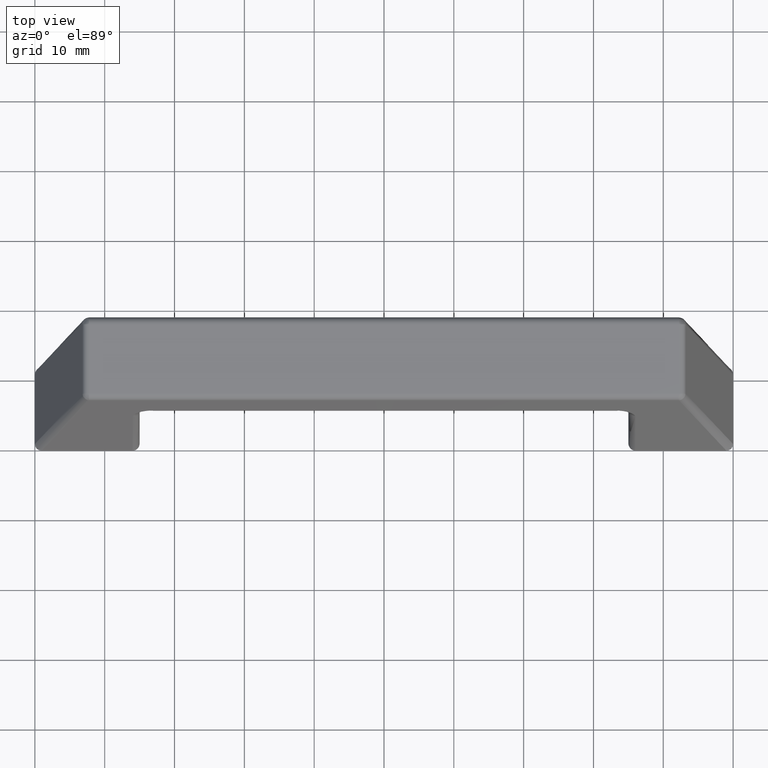
[diagram: clean part render]
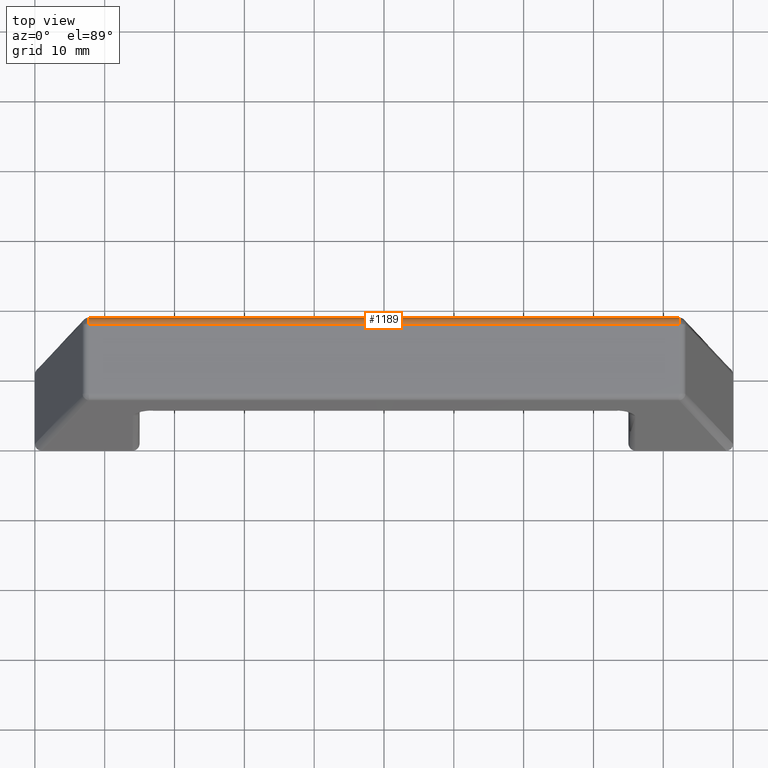
[diagram: same view with one face highlighted and labeled with its STEP entity id]
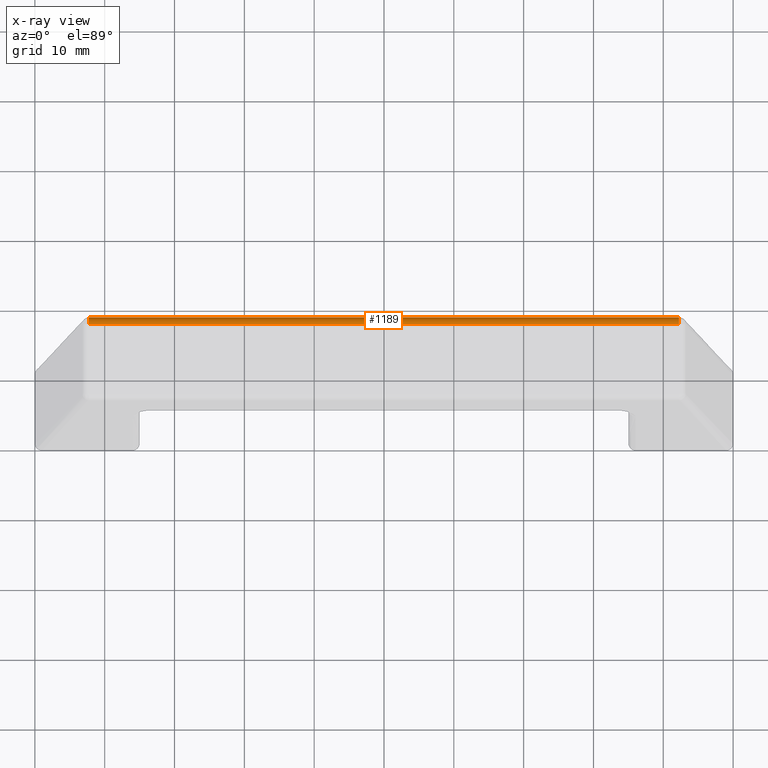
[diagram: x-ray of the same camera — body ghosted, the highlighted face saturated]
A machine part, top view. The second image highlights one B-rep face of the part: STEP entity #1189.
The next image is the same camera in x-ray: the body ghosted, the highlighted face saturated — about 0% of this face is hidden behind the body in this view.
In plain terms, the highlighted face is a freeform B-spline surface patch.
Its self-contained STEP definition (entity closure, byte-faithful):
#1053=CARTESIAN_POINT('',(42.241339607118150,18.644107828933251,23.730385126517302));
#1054=VERTEX_POINT('',#1053);
#1109=CARTESIAN_POINT('',(42.241339607118150,17.681139594775448,25.0));
#1110=VERTEX_POINT('',#1109);
#1111=CARTESIAN_POINT('',(42.241339607118150,18.644107828933251,23.730385126517302));
#1112=CARTESIAN_POINT('',(42.241339607118150,18.778006452908038,24.208623288305596));
#1113=CARTESIAN_POINT('',(42.241339607118150,18.477887633205039,24.604311644152808));
#1114=CARTESIAN_POINT('',(42.241339607118150,18.177768813502066,25.000000000000004));
#1115=CARTESIAN_POINT('',(42.241339607118150,17.681139594775502,25.0));
#1123=(BOUNDED_CURVE()B_SPLINE_CURVE(2,(#1111,#1112,#1113,#1114,#1115),.UNSPECIFIED.,.F.,.U.)B_SPLINE_CURVE_WITH_KNOTS((3,2,3),(0.0,0.500000000000000,1.0),.UNSPECIFIED.)CURVE()GEOMETRIC_REPRESENTATION_ITEM()RATIONAL_B_SPLINE_CURVE((1.0,0.895631521372705,1.0,0.895631521372705,1.0))REPRESENTATION_ITEM(''));
#1124=EDGE_CURVE('',#1054,#1110,#1123,.T.);
#1143=CARTESIAN_POINT('',(-44.353714079775962,17.648705737040160,24.999473884037201));
#1144=CARTESIAN_POINT('',(44.406215949290512,17.648705737040160,24.999473884037201));
#1145=CARTESIAN_POINT('',(-44.353714079775948,19.130486706561545,25.047559055573902));
#1146=CARTESIAN_POINT('',(44.406215949290505,19.130486706561545,25.047559055573902));
#1147=CARTESIAN_POINT('',(-44.353714079775962,18.619985580073511,23.655662642326170));
#1148=CARTESIAN_POINT('',(44.406215949290512,18.619985580073511,23.655662642326170));
#1156=(BOUNDED_SURFACE()B_SPLINE_SURFACE(1,2,((#1143,#1145,#1147),(#1144,#1146,#1148)),.UNSPECIFIED.,.F.,.F.,.U.)B_SPLINE_SURFACE_WITH_KNOTS((2,2),(3,3),(0.0,88.759930029066481),(0.0,2.126837726645911),.UNSPECIFIED.)GEOMETRIC_REPRESENTATION_ITEM()RATIONAL_B_SPLINE_SURFACE(((1.0,0.559192903470746,1.0),(1.0,0.559192903470746,1.0)))REPRESENTATION_ITEM('')SURFACE());
#1157=CARTESIAN_POINT('',(-42.241639599607801,18.644107828933251,23.730385126517302));
#1158=VERTEX_POINT('',#1157);
#1159=CARTESIAN_POINT('',(-42.241639599607801,17.681139594775448,25.0));
#1160=VERTEX_POINT('',#1159);
#1161=CARTESIAN_POINT('',(-42.241639599607801,18.644107828933251,23.730385126517302));
#1162=CARTESIAN_POINT('',(-42.241639599607801,18.778006452908038,24.208623288305596));
#1163=CARTESIAN_POINT('',(-42.241639599607801,18.477887633205039,24.604311644152808));
#1164=CARTESIAN_POINT('',(-42.241639599607801,18.177768813502066,25.000000000000004));
#1165=CARTESIAN_POINT('',(-42.241639599607801,17.681139594775502,25.0));
#1173=(BOUNDED_CURVE()B_SPLINE_CURVE(2,(#1161,#1162,#1163,#1164,#1165),.UNSPECIFIED.,.F.,.U.)B_SPLINE_CURVE_WITH_KNOTS((3,2,3),(0.0,0.500000000000000,1.0),.UNSPECIFIED.)CURVE()GEOMETRIC_REPRESENTATION_ITEM()RATIONAL_B_SPLINE_CURVE((1.0,0.895631521372705,1.0,0.895631521372705,1.0))REPRESENTATION_ITEM(''));
#1174=EDGE_CURVE('',#1158,#1160,#1173,.T.);
#1175=ORIENTED_EDGE('',*,*,#1174,.T.);
#1176=CARTESIAN_POINT('',(42.241339607118150,17.681139594775448,25.0));
#1177=CARTESIAN_POINT('',(-42.241639599607801,17.681139594775448,25.0));
#1178=QUASI_UNIFORM_CURVE('',1,(#1176,#1177),.UNSPECIFIED.,.F.,.U.);
#1179=EDGE_CURVE('',#1110,#1160,#1178,.T.);
#1180=ORIENTED_EDGE('',*,*,#1179,.F.);
#1181=ORIENTED_EDGE('',*,*,#1124,.F.);
#1182=CARTESIAN_POINT('',(-42.241639599607801,18.644107828933251,23.730385126517302));
#1183=CARTESIAN_POINT('',(42.241339607118150,18.644107828933251,23.730385126517302));
#1184=QUASI_UNIFORM_CURVE('',1,(#1182,#1183),.UNSPECIFIED.,.F.,.U.);
#1185=EDGE_CURVE('',#1158,#1054,#1184,.T.);
#1186=ORIENTED_EDGE('',*,*,#1185,.F.);
#1187=EDGE_LOOP('',(#1175,#1180,#1181,#1186));
#1188=FACE_OUTER_BOUND('',#1187,.T.);
#1189=ADVANCED_FACE('',(#1188),#1156,.T.);